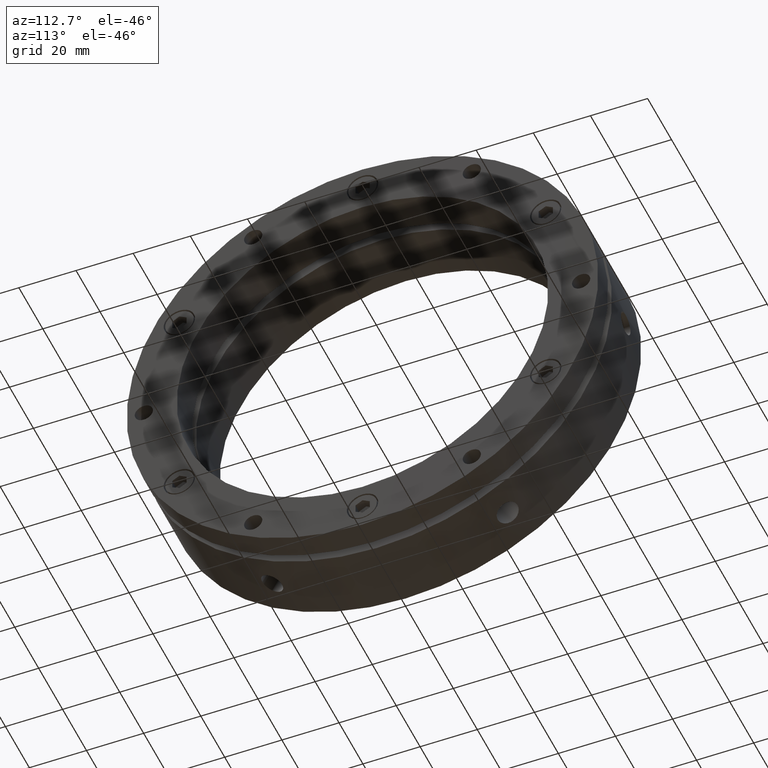
[diagram: clean part render]
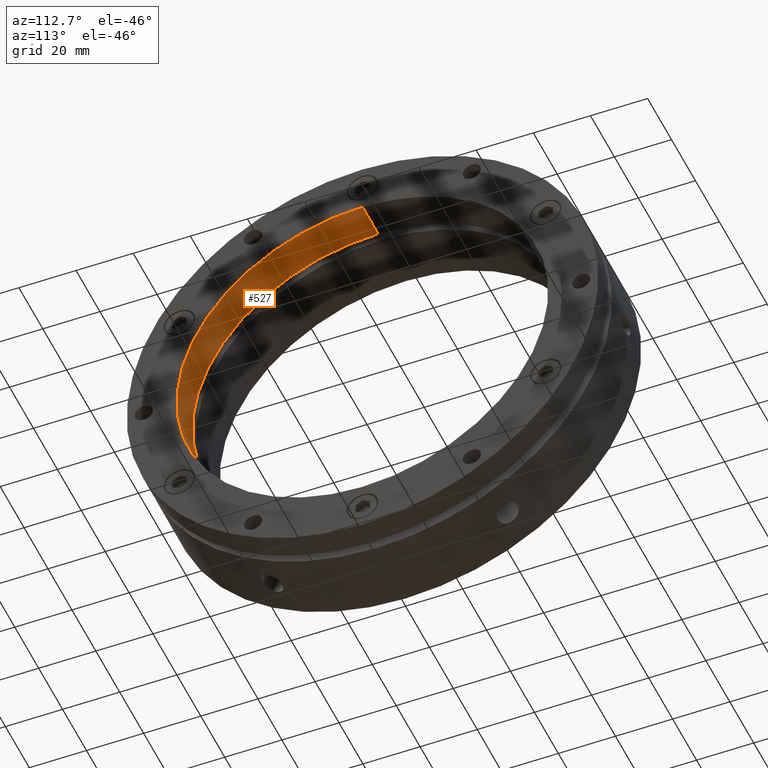
[diagram: same view with one face highlighted and labeled with its STEP entity id]
A machine part, auxiliary view. The second image highlights one B-rep face of the part: STEP entity #527.
In plain terms, the highlighted cylindrical surface (partial cylindrical patch) has radius 65 mm, axis along (1, 0, 0).
Its self-contained STEP definition (entity closure, byte-faithful):
#527 = ADVANCED_FACE ( 'NONE', ( #2389 ), #4681, .F. ) ;
#763 = DIRECTION ( 'NONE',  ( 1.000000000000000000, 0.0000000000000000000, 0.0000000000000000000 ) ) ;
#764 = DIRECTION ( 'NONE',  ( 1.000000000000000000, 0.0000000000000000000, 0.0000000000000000000 ) ) ;
#765 = CARTESIAN_POINT ( 'NONE',  ( 17.99999999999998600, 7.960204194457797300E-015, 65.00000000000000000 ) ) ;
#766 = CARTESIAN_POINT ( 'NONE',  ( 22.99999999999998900, 0.0000000000000000000, 0.0000000000000000000 ) ) ;
#767 = DIRECTION ( 'NONE',  ( -1.000000000000000000, -0.0000000000000000000, -0.0000000000000000000 ) ) ;
#768 = DIRECTION ( 'NONE',  ( 0.0000000000000000000, 0.0000000000000000000, -1.000000000000000000 ) ) ;
#769 = CARTESIAN_POINT ( 'NONE',  ( 17.99999999999998600, 0.0000000000000000000, -65.00000000000000000 ) ) ;
#770 = CARTESIAN_POINT ( 'NONE',  ( 35.99999999999998600, 0.0000000000000000000, 0.0000000000000000000 ) ) ;
#771 = DIRECTION ( 'NONE',  ( -1.000000000000000000, -0.0000000000000000000, -0.0000000000000000000 ) ) ;
#772 = DIRECTION ( 'NONE',  ( 0.0000000000000000000, 0.0000000000000000000, -1.000000000000000000 ) ) ;
#2178 = VECTOR ( 'NONE', #764, 1000.000000000000000 ) ;
#2181 = VECTOR ( 'NONE', #763, 1000.000000000000000 ) ;
#2182 = CIRCLE ( 'NONE', #3799, 65.00000000000000000 ) ;
#2183 = LINE ( 'NONE', #769, #2178 ) ;
#2185 = LINE ( 'NONE', #765, #2181 ) ;
#2189 = CIRCLE ( 'NONE', #3800, 65.00000000000000000 ) ;
#2348 = VERTEX_POINT ( 'NONE', #3287 ) ;
#2349 = VERTEX_POINT ( 'NONE', #3288 ) ;
#2353 = VERTEX_POINT ( 'NONE', #3292 ) ;
#2354 = VERTEX_POINT ( 'NONE', #3293 ) ;
#2389 = FACE_OUTER_BOUND ( 'NONE', #3525, .T. ) ;
#2598 = EDGE_CURVE ( 'NONE', #2354, #2353, #2189, .T. ) ;
#2599 = EDGE_CURVE ( 'NONE', #2353, #2348, #2185, .T. ) ;
#2600 = EDGE_CURVE ( 'NONE', #2349, #2348, #2182, .T. ) ;
#2601 = EDGE_CURVE ( 'NONE', #2354, #2349, #2183, .T. ) ;
#3201 = DIRECTION ( 'NONE',  ( 0.0000000000000000000, 0.0000000000000000000, -1.000000000000000000 ) ) ;
#3203 = DIRECTION ( 'NONE',  ( 1.000000000000000000, 0.0000000000000000000, 0.0000000000000000000 ) ) ;
#3205 = CARTESIAN_POINT ( 'NONE',  ( 17.99999999999998600, 0.0000000000000000000, 0.0000000000000000000 ) ) ;
#3287 = CARTESIAN_POINT ( 'NONE',  ( 35.99999999999998600, 7.960204194457797300E-015, 65.00000000000000000 ) ) ;
#3288 = CARTESIAN_POINT ( 'NONE',  ( 35.99999999999998600, 0.0000000000000000000, -65.00000000000000000 ) ) ;
#3292 = CARTESIAN_POINT ( 'NONE',  ( 22.99999999999998900, 7.960204194457797300E-015, 65.00000000000000000 ) ) ;
#3293 = CARTESIAN_POINT ( 'NONE',  ( 22.99999999999998900, 0.0000000000000000000, -65.00000000000000000 ) ) ;
#3525 = EDGE_LOOP ( 'NONE', ( #4129, #4128, #4127, #4126 ) ) ;
#3748 = AXIS2_PLACEMENT_3D ( 'NONE', #3205, #3203, #3201 ) ;
#3799 = AXIS2_PLACEMENT_3D ( 'NONE', #770, #771, #772 ) ;
#3800 = AXIS2_PLACEMENT_3D ( 'NONE', #766, #767, #768 ) ;
#4126 = ORIENTED_EDGE ( 'NONE', *, *, #2601, .F. ) ;
#4127 = ORIENTED_EDGE ( 'NONE', *, *, #2600, .F. ) ;
#4128 = ORIENTED_EDGE ( 'NONE', *, *, #2599, .T. ) ;
#4129 = ORIENTED_EDGE ( 'NONE', *, *, #2598, .T. ) ;
#4681 = CYLINDRICAL_SURFACE ( 'NONE', #3748, 65.00000000000000000 ) ;